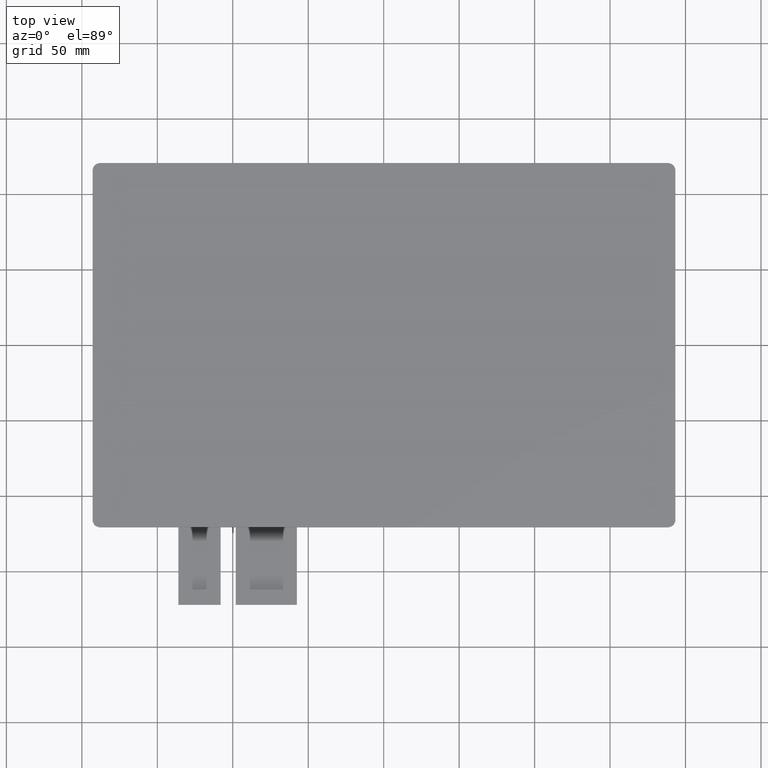
[diagram: clean part render]
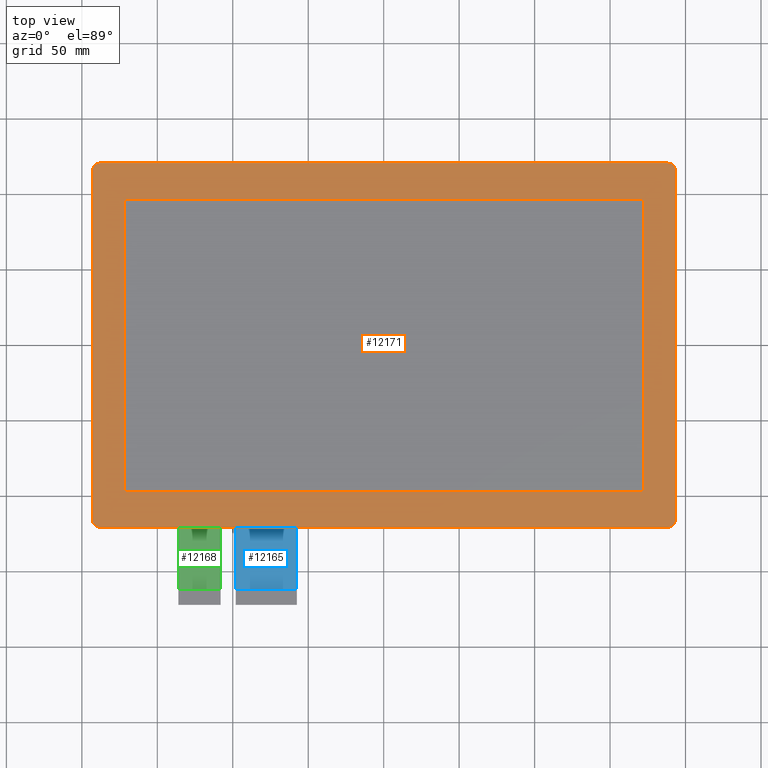
[diagram: same view with three faces highlighted in distinct colors, each labeled with its STEP entity id]
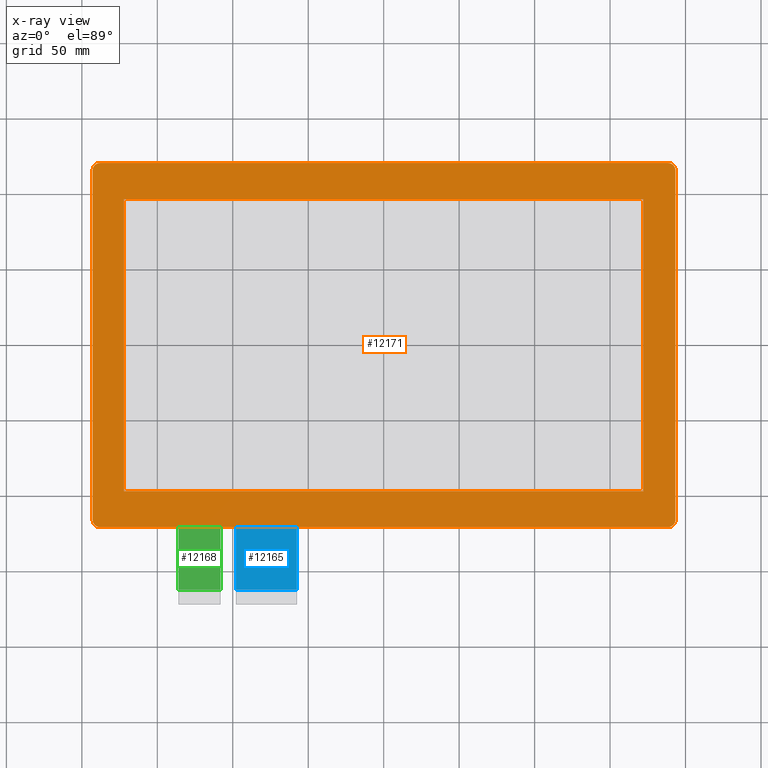
[diagram: x-ray of the same camera — body ghosted, the three highlighted faces saturated]
A machine part, top view with three faces highlighted in distinct colors.
The next image is the same camera in x-ray (body ghosted, the three faces saturated) — at least one of them is partly hidden behind the body in this view.
Their STEP definitions:

[orange] entity #12171 — the highlighted planar face has unit normal (0, 0, 1).
#31=FACE_BOUND('',#1776,.T.);
#610=PLANE('',#12787);
#1191=FACE_OUTER_BOUND('',#1775,.T.);
#1775=EDGE_LOOP('',(#11495,#11496,#11497,#11498,#11499,#11500,#11501,#11502));
#1776=EDGE_LOOP('',(#11503,#11504,#11505,#11506));
#3473=LINE('',#19105,#5189);
#3476=LINE('',#19111,#5192);
#3477=LINE('',#19115,#5193);
#3478=LINE('',#19119,#5194);
#3479=LINE('',#19123,#5195);
#3480=LINE('',#19125,#5196);
#3481=LINE('',#19127,#5197);
#3482=LINE('',#19128,#5198);
#5189=VECTOR('',#15637,10.);
#5192=VECTOR('',#15642,10.);
#5193=VECTOR('',#15645,10.);
#5194=VECTOR('',#15648,10.);
#5195=VECTOR('',#15651,10.);
#5196=VECTOR('',#15652,10.);
#5197=VECTOR('',#15653,10.);
#5198=VECTOR('',#15654,10.);
#5239=CIRCLE('',#12784,5.);
#5241=CIRCLE('',#12788,5.);
#5242=CIRCLE('',#12789,5.);
#5243=CIRCLE('',#12790,5.);
#6367=VERTEX_POINT('',#19095);
#6368=VERTEX_POINT('',#19096);
#6371=VERTEX_POINT('',#19104);
#6373=VERTEX_POINT('',#19110);
#6374=VERTEX_POINT('',#19112);
#6375=VERTEX_POINT('',#19114);
#6376=VERTEX_POINT('',#19116);
#6377=VERTEX_POINT('',#19118);
#6378=VERTEX_POINT('',#19121);
#6379=VERTEX_POINT('',#19122);
#6380=VERTEX_POINT('',#19124);
#6381=VERTEX_POINT('',#19126);
#8083=EDGE_CURVE('',#6367,#6368,#5239,.T.);
#8087=EDGE_CURVE('',#6371,#6368,#3473,.T.);
#8090=EDGE_CURVE('',#6367,#6373,#3476,.T.);
#8091=EDGE_CURVE('',#6374,#6373,#5241,.T.);
#8092=EDGE_CURVE('',#6374,#6375,#3477,.T.);
#8093=EDGE_CURVE('',#6376,#6375,#5242,.T.);
#8094=EDGE_CURVE('',#6376,#6377,#3478,.T.);
#8095=EDGE_CURVE('',#6371,#6377,#5243,.T.);
#8096=EDGE_CURVE('',#6378,#6379,#3479,.T.);
#8097=EDGE_CURVE('',#6380,#6378,#3480,.T.);
#8098=EDGE_CURVE('',#6381,#6380,#3481,.T.);
#8099=EDGE_CURVE('',#6379,#6381,#3482,.T.);
#11495=ORIENTED_EDGE('',*,*,#8083,.F.);
#11496=ORIENTED_EDGE('',*,*,#8090,.T.);
#11497=ORIENTED_EDGE('',*,*,#8091,.F.);
#11498=ORIENTED_EDGE('',*,*,#8092,.T.);
#11499=ORIENTED_EDGE('',*,*,#8093,.F.);
#11500=ORIENTED_EDGE('',*,*,#8094,.T.);
#11501=ORIENTED_EDGE('',*,*,#8095,.F.);
#11502=ORIENTED_EDGE('',*,*,#8087,.T.);
#11503=ORIENTED_EDGE('',*,*,#8096,.F.);
#11504=ORIENTED_EDGE('',*,*,#8097,.F.);
#11505=ORIENTED_EDGE('',*,*,#8098,.F.);
#11506=ORIENTED_EDGE('',*,*,#8099,.F.);
#12171=ADVANCED_FACE('',(#1191,#31),#610,.T.);
#12784=AXIS2_PLACEMENT_3D('',#19097,#15629,#15630);
#12787=AXIS2_PLACEMENT_3D('',#19109,#15640,#15641);
#12788=AXIS2_PLACEMENT_3D('',#19113,#15643,#15644);
#12789=AXIS2_PLACEMENT_3D('',#19117,#15646,#15647);
#12790=AXIS2_PLACEMENT_3D('',#19120,#15649,#15650);
#15629=DIRECTION('center_axis',(0.,0.,-1.));
#15630=DIRECTION('ref_axis',(0.707106781186547,0.707106781186547,0.));
#15637=DIRECTION('',(0.,1.,0.));
#15640=DIRECTION('center_axis',(0.,0.,1.));
#15641=DIRECTION('ref_axis',(1.,0.,0.));
#15642=DIRECTION('',(-1.,0.,0.));
#15643=DIRECTION('center_axis',(0.,0.,-1.));
#15644=DIRECTION('ref_axis',(-0.707106781186547,0.707106781186547,0.));
#15645=DIRECTION('',(2.94342475459859E-16,-1.,0.));
#15646=DIRECTION('center_axis',(0.,0.,-1.));
#15647=DIRECTION('ref_axis',(-0.707106781186547,-0.707106781186547,0.));
#15648=DIRECTION('',(1.,1.37987325691371E-16,0.));
#15649=DIRECTION('center_axis',(0.,0.,-1.));
#15650=DIRECTION('ref_axis',(0.70710678118655,-0.707106781186545,0.));
#15651=DIRECTION('',(0.,1.,0.));
#15652=DIRECTION('',(1.,0.,0.));
#15653=DIRECTION('',(0.,-1.,0.));
#15654=DIRECTION('',(-1.,0.,0.));
#19095=CARTESIAN_POINT('',(188.3,120.7,1.1));
#19096=CARTESIAN_POINT('',(193.3,115.7,1.1));
#19097=CARTESIAN_POINT('Origin',(188.3,115.7,1.1));
#19104=CARTESIAN_POINT('',(193.3,-115.7,1.1));
#19105=CARTESIAN_POINT('',(193.3,-120.7,1.1));
#19109=CARTESIAN_POINT('Origin',(0.199999999999996,3.5527136788005E-14,
1.1));
#19110=CARTESIAN_POINT('',(-187.9,120.7,1.1));
#19111=CARTESIAN_POINT('',(193.3,120.7,1.1));
#19112=CARTESIAN_POINT('',(-192.9,115.7,1.1));
#19113=CARTESIAN_POINT('Origin',(-187.9,115.7,1.1));
#19114=CARTESIAN_POINT('',(-192.9,-115.7,1.1));
#19115=CARTESIAN_POINT('',(-192.9,120.7,1.1));
#19116=CARTESIAN_POINT('',(-187.9,-120.7,1.1));
#19117=CARTESIAN_POINT('Origin',(-187.9,-115.7,1.1));
#19118=CARTESIAN_POINT('',(188.3,-120.7,1.1));
#19119=CARTESIAN_POINT('',(-192.9,-120.7,1.1));
#19120=CARTESIAN_POINT('Origin',(188.3,-115.7,1.1));
#19121=CARTESIAN_POINT('',(172.15,-96.8,1.1));
#19122=CARTESIAN_POINT('',(172.15,96.8,1.1));
#19123=CARTESIAN_POINT('',(172.15,-48.4,1.1));
#19124=CARTESIAN_POINT('',(-172.15,-96.8,1.1));
#19125=CARTESIAN_POINT('',(-85.975,-96.8,1.1));
#19126=CARTESIAN_POINT('',(-172.15,96.8,1.1));
#19127=CARTESIAN_POINT('',(-172.15,48.4,1.1));
#19128=CARTESIAN_POINT('',(86.175,96.8,1.1));

[blue] entity #12165 — the highlighted planar face has unit normal (0, 0, 1).
#605=PLANE('',#12779);
#1185=FACE_OUTER_BOUND('',#1769,.T.);
#1769=EDGE_LOOP('',(#11467,#11468,#11469,#11470));
#3452=LINE('',#19058,#5168);
#3455=LINE('',#19064,#5171);
#3465=LINE('',#19083,#5181);
#3466=LINE('',#19085,#5182);
#5168=VECTOR('',#15590,10.);
#5171=VECTOR('',#15595,10.);
#5181=VECTOR('',#15613,10.);
#5182=VECTOR('',#15616,10.);
#6357=VERTEX_POINT('',#19055);
#6358=VERTEX_POINT('',#19057);
#6360=VERTEX_POINT('',#19063);
#6365=VERTEX_POINT('',#19081);
#8064=EDGE_CURVE('',#6358,#6357,#3452,.T.);
#8067=EDGE_CURVE('',#6357,#6360,#3455,.T.);
#8077=EDGE_CURVE('',#6360,#6365,#3465,.T.);
#8078=EDGE_CURVE('',#6358,#6365,#3466,.T.);
#11467=ORIENTED_EDGE('',*,*,#8067,.T.);
#11468=ORIENTED_EDGE('',*,*,#8077,.T.);
#11469=ORIENTED_EDGE('',*,*,#8078,.F.);
#11470=ORIENTED_EDGE('',*,*,#8064,.T.);
#12165=ADVANCED_FACE('',(#1185),#605,.T.);
#12779=AXIS2_PLACEMENT_3D('',#19084,#15614,#15615);
#15590=DIRECTION('',(5.9211894646675E-16,-1.,0.));
#15595=DIRECTION('',(1.,0.,0.));
#15613=DIRECTION('',(4.44089209850063E-16,1.,0.));
#15614=DIRECTION('center_axis',(0.,0.,1.));
#15615=DIRECTION('ref_axis',(1.,0.,0.));
#15616=DIRECTION('',(1.,1.46564095660087E-16,0.));
#19055=CARTESIAN_POINT('',(-98.07,-162.1,-1.25));
#19057=CARTESIAN_POINT('',(-98.07,-112.1,-1.25));
#19058=CARTESIAN_POINT('',(-98.07,-112.1,-1.25));
#19063=CARTESIAN_POINT('',(-57.57,-162.1,-1.25));
#19064=CARTESIAN_POINT('',(-67.695,-162.1,-1.25));
#19081=CARTESIAN_POINT('',(-57.57,-112.1,-1.25));
#19083=CARTESIAN_POINT('',(-57.57,-172.1,-1.25));
#19084=CARTESIAN_POINT('Origin',(-77.82,-142.1,-1.25));
#19085=CARTESIAN_POINT('',(51.3150000000001,-112.1,-1.25));

[green] entity #12168 — the highlighted planar face has unit normal (0, 0, 1).
#608=PLANE('',#12782);
#1188=FACE_OUTER_BOUND('',#1772,.T.);
#1772=EDGE_LOOP('',(#11483,#11484,#11485,#11486));
#3448=LINE('',#19050,#5164);
#3459=LINE('',#19072,#5175);
#3469=LINE('',#19091,#5185);
#3470=LINE('',#19093,#5186);
#5164=VECTOR('',#15584,10.);
#5175=VECTOR('',#15603,10.);
#5185=VECTOR('',#15623,10.);
#5186=VECTOR('',#15626,10.);
#6354=VERTEX_POINT('',#19047);
#6355=VERTEX_POINT('',#19049);
#6362=VERTEX_POINT('',#19071);
#6366=VERTEX_POINT('',#19089);
#8060=EDGE_CURVE('',#6355,#6354,#3448,.T.);
#8071=EDGE_CURVE('',#6354,#6362,#3459,.T.);
#8081=EDGE_CURVE('',#6362,#6366,#3469,.T.);
#8082=EDGE_CURVE('',#6355,#6366,#3470,.T.);
#11483=ORIENTED_EDGE('',*,*,#8071,.T.);
#11484=ORIENTED_EDGE('',*,*,#8081,.T.);
#11485=ORIENTED_EDGE('',*,*,#8082,.F.);
#11486=ORIENTED_EDGE('',*,*,#8060,.T.);
#12168=ADVANCED_FACE('',(#1188),#608,.T.);
#12782=AXIS2_PLACEMENT_3D('',#19092,#15624,#15625);
#15584=DIRECTION('',(1.1842378929335E-15,-1.,0.));
#15603=DIRECTION('',(1.,0.,0.));
#15623=DIRECTION('',(-2.96059473233375E-16,1.,0.));
#15624=DIRECTION('center_axis',(0.,0.,1.));
#15625=DIRECTION('ref_axis',(1.,0.,0.));
#15626=DIRECTION('',(1.,1.46564095660087E-16,0.));
#19047=CARTESIAN_POINT('',(-136.07,-162.1,-1.25));
#19049=CARTESIAN_POINT('',(-136.07,-112.1,-1.25));
#19050=CARTESIAN_POINT('',(-136.07,-112.1,-1.25));
#19071=CARTESIAN_POINT('',(-108.07,-162.1,-1.25));
#19072=CARTESIAN_POINT('',(-115.07,-162.1,-1.25));
#19089=CARTESIAN_POINT('',(-108.07,-112.1,-1.25));
#19091=CARTESIAN_POINT('',(-108.07,-172.1,-1.25));
#19092=CARTESIAN_POINT('Origin',(-122.07,-142.1,-1.25));
#19093=CARTESIAN_POINT('',(29.1900000000001,-112.1,-1.25));